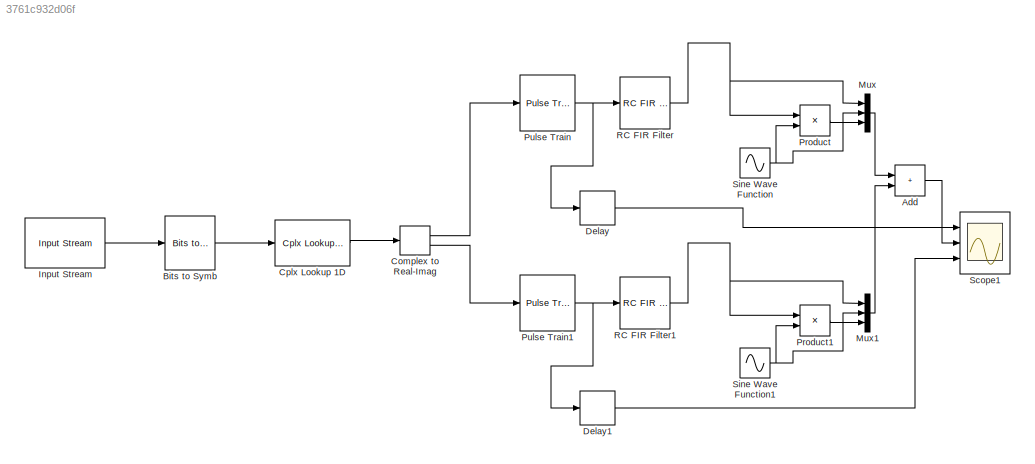
MODEL slx_3761c932d06f
KIND model
CONFIG AbsTol = auto
CONFIG EnableMultiTasking = off
CONFIG FixedStep = auto
CONFIG MaxStep = auto
CONFIG MinStep = auto
CONFIG RelTol = 1e-3
CONFIG SampleTimeConstraint = Unconstrained
CONFIG SolverName = VariableStepAuto
CONFIG StartTime = 0.0
CONFIG StopTime = 1000
BLOCK [Sum] Add
  IconShape = rectangular
  Ports = [2, 1]
BLOCK [Reference] Bits to Symb  REF=dsp_blocks/Conversions/Bits to Symb
  Ports = [1, 1]
  SourceBlock = dsp_blocks/Conversions/Bits to Symb
BLOCK [ComplexToRealImag] Complex to Real-Imag
  Ports = [1, 2]
BLOCK [Reference] Cplx Lookup 1D  REF=dsp_blocks/Conversions/Cplx Lookup 1D
  Ports = [1, 1]
  SourceBlock = dsp_blocks/Conversions/Cplx Lookup 1D
BLOCK [Delay] Delay
  DelayLength = 64
  InputPortMap = u0
  Ports = [1, 1]
BLOCK [Delay] Delay1
  DelayLength = 64
  InputPortMap = u0
  Ports = [1, 1]
BLOCK [Reference] Input Stream  REF=dsp_blocks/Sources//Sinks/Input Stream
  Ports = [0, 1]
  SourceBlock = dsp_blocks/Sources//Sinks/Input Stream
BLOCK [Mux] Mux
  DisplayOption = bar
  Inputs = 3
  Ports = [3, 1]
BLOCK [Mux] Mux1
  DisplayOption = bar
  Inputs = 3
  Ports = [3, 1]
BLOCK [Product] Product
  Ports = [2, 1]
BLOCK [Product] Product1
  Ports = [2, 1]
BLOCK [Reference] Pulse Train  REF=dsp_blocks/Conversions/Pulse Train
  Ports = [1, 1]
  SourceBlock = dsp_blocks/Conversions/Pulse Train
BLOCK [Reference] Pulse Train1  REF=dsp_blocks/Conversions/Pulse Train
  Ports = [1, 1]
  SourceBlock = dsp_blocks/Conversions/Pulse Train
BLOCK [Reference] RC FIR Filter  REF=dsp_blocks/Filters/RC FIR Filter
  Ports = [1, 1]
  SourceBlock = dsp_blocks/Filters/RC FIR Filter
BLOCK [Reference] RC FIR Filter1  REF=dsp_blocks/Filters/RC FIR Filter
  Ports = [1, 1]
  SourceBlock = dsp_blocks/Filters/RC FIR Filter
BLOCK [Scope] Scope1
  Floating = off
  NumInputPorts = 3
  Ports = [3]
  ScopeSpecificationString = Simulink.scopes.TimeScopeBlockCfg('CurrentConfiguration', extmgr.ConfigurationSet(extmgr.Configuration('Core','General UI',true),extmgr.Configuration('Core','Source UI',true),extmgr.Configuration('Sources','WiredSimulink',true,'DataLoggingVariableName','ScopeData1'),extmgr.Configuration('Visuals','Time Domain',true,'SerializedDisplays',{struct('MinYLimReal','-1.25','MaxYLimReal','1.25','YLabelReal...<+2725ch>
BLOCK [Sin] Sine Wave Function
  Frequency = 2*pi*0.1
  Phase = pi/2
  Ports = [0, 1]
  SampleTime = 0
BLOCK [Sin] Sine Wave Function1
  Frequency = 2*pi*0.1
  Ports = [0, 1]
  SampleTime = 0
LINE Add:1 -> Scope1:2
LINE Bits to Symb:1 -> Cplx Lookup 1D:1
LINE Complex to Real-Imag:1 -> Pulse Train:1
LINE Complex to Real-Imag:2 -> Pulse Train1:1
LINE Cplx Lookup 1D:1 -> Complex to Real-Imag:1
LINE Delay1:1 -> Scope1:3
LINE Delay:1 -> Scope1:1
LINE Input Stream:1 -> Bits to Symb:1
LINE Mux1:1 -> Add:2
LINE Mux:1 -> Add:1
LINE Product1:1 -> Mux1:3
LINE Product:1 -> Mux:3
NET Pulse Train1:1 -> Delay1:1, RC FIR Filter1:1
NET Pulse Train:1 -> Delay:1, RC FIR Filter:1
NET RC FIR Filter1:1 -> Mux1:1, Product1:1
NET RC FIR Filter:1 -> Mux:1, Product:1
NET Sine Wave Function1:1 -> Mux1:2, Product1:2
NET Sine Wave Function:1 -> Mux:2, Product:2
note: NET lines group one-source signal fan-out (src -> all destinations, sorted); 1:1 wires keep LINE
